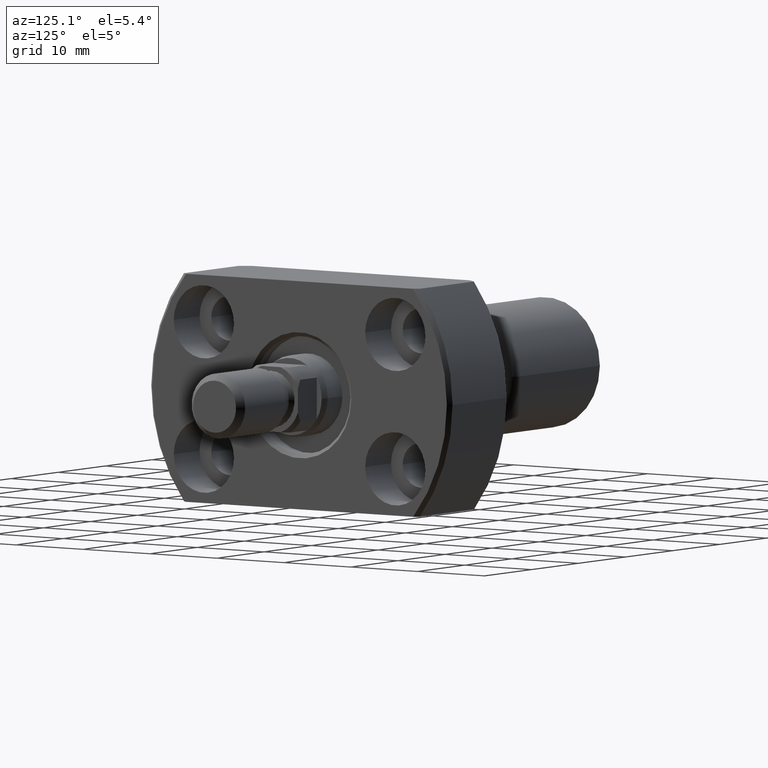
[diagram: clean part render]
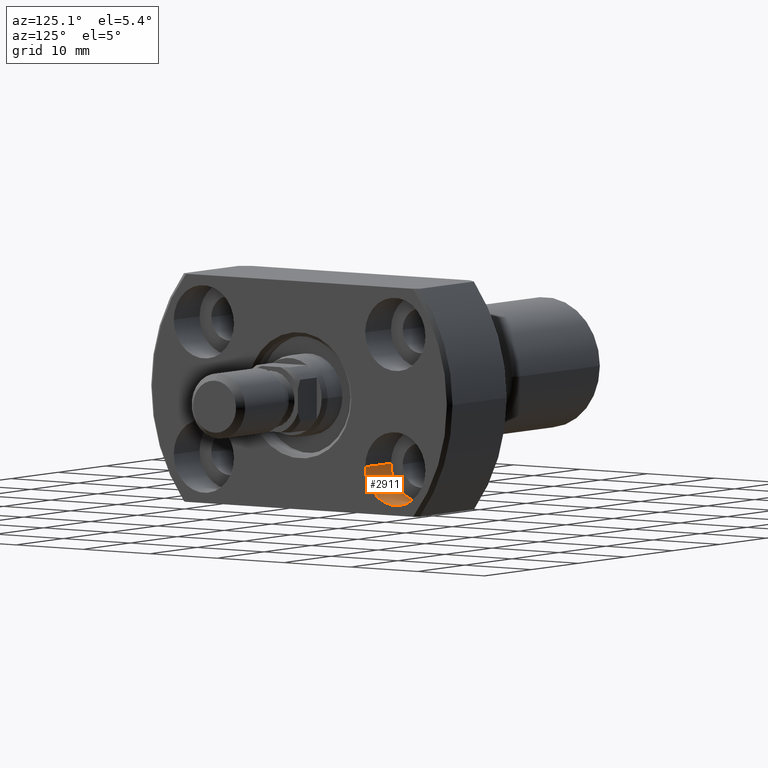
[diagram: same view with one face highlighted and labeled with its STEP entity id]
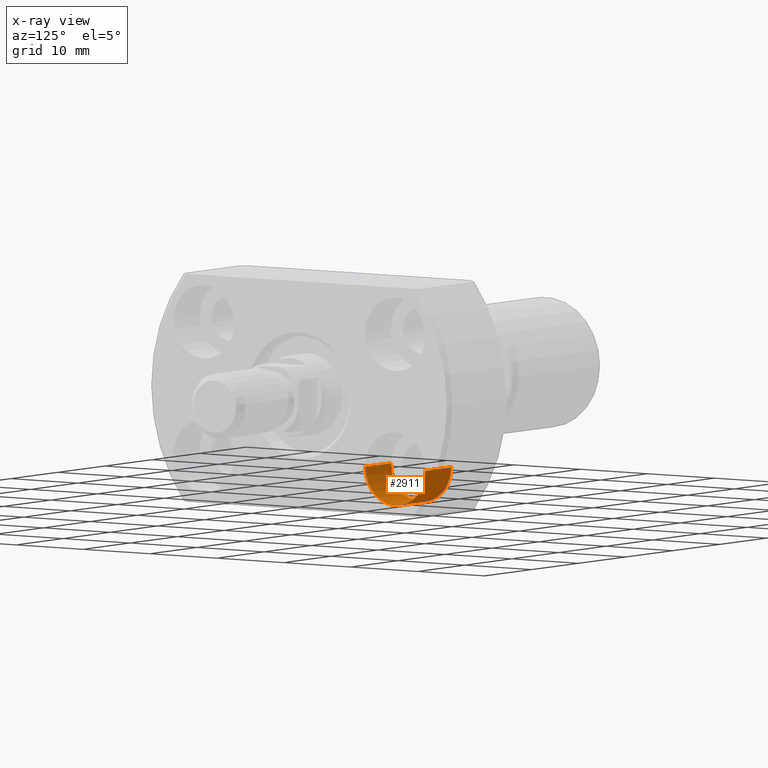
[diagram: x-ray of the same camera — body ghosted, the highlighted face saturated]
A machine part, auxiliary view. The second image highlights one B-rep face of the part: STEP entity #2911.
The next image is the same camera in x-ray: the body ghosted, the highlighted face saturated — about 0% of this face is hidden behind the body in this view.
In plain terms, the highlighted cylindrical surface (partial cylindrical patch) has radius 4.5 mm, axis along (1, -0, 0).
Its self-contained STEP definition (entity closure, byte-faithful):
#19 = VERTEX_POINT ( 'NONE', #2838 ) ;
#207 = VERTEX_POINT ( 'NONE', #3416 ) ;
#221 = ORIENTED_EDGE ( 'NONE', *, *, #1900, .F. ) ;
#360 = CARTESIAN_POINT ( 'NONE',  ( 24.50000000000028422, 9.799999999999087663, -8.250000000000000000 ) ) ;
#385 = CARTESIAN_POINT ( 'NONE',  ( 19.00000000000054001, 18.79999999999965610, -8.250000000000000000 ) ) ;
#439 = DIRECTION ( 'NONE',  ( 2.852656382717286247E-14, 1.000000000000000000, 0.000000000000000000 ) ) ;
#500 = LINE ( 'NONE', #2744, #2232 ) ;
#588 = DIRECTION ( 'NONE',  ( 2.852656382717286247E-14, 1.000000000000000000, 0.000000000000000000 ) ) ;
#764 = CYLINDRICAL_SURFACE ( 'NONE', #2052, 4.500000000000205169 ) ;
#859 = EDGE_CURVE ( 'NONE', #3597, #19, #3311, .T. ) ;
#1053 = ORIENTED_EDGE ( 'NONE', *, *, #2949, .T. ) ;
#1122 = CARTESIAN_POINT ( 'NONE',  ( 19.00000000000041211, 14.29999999999945182, -8.250000000000000000 ) ) ;
#1240 = VECTOR ( 'NONE', #2925, 1000.000000000000000 ) ;
#1273 = DIRECTION ( 'NONE',  ( 1.000000000000000000, -2.889258529047467066E-14, 0.000000000000000000 ) ) ;
#1320 = FACE_OUTER_BOUND ( 'NONE', #2702, .T. ) ;
#1458 = CIRCLE ( 'NONE', #2418, 4.500000000000205169 ) ;
#1562 = DIRECTION ( 'NONE',  ( 1.000000000000000000, -2.886466111666351885E-14, -0.000000000000000000 ) ) ;
#1675 = ORIENTED_EDGE ( 'NONE', *, *, #859, .T. ) ;
#1900 = EDGE_CURVE ( 'NONE', #207, #2280, #1458, .T. ) ;
#2052 = AXIS2_PLACEMENT_3D ( 'NONE', #2124, #1562, #439 ) ;
#2112 = CARTESIAN_POINT ( 'NONE',  ( 24.50000000000041211, 14.29999999999929194, -8.250000000000000000 ) ) ;
#2124 = CARTESIAN_POINT ( 'NONE',  ( 19.00000000000041211, 14.29999999999945182, -8.250000000000000000 ) ) ;
#2185 = EDGE_CURVE ( 'NONE', #2280, #19, #500, .T. ) ;
#2232 = VECTOR ( 'NONE', #2449, 1000.000000000000000 ) ;
#2280 = VERTEX_POINT ( 'NONE', #385 ) ;
#2418 = AXIS2_PLACEMENT_3D ( 'NONE', #1122, #3123, #588 ) ;
#2449 = DIRECTION ( 'NONE',  ( 1.000000000000000000, -2.886466111666351885E-14, -0.000000000000000000 ) ) ;
#2572 = AXIS2_PLACEMENT_3D ( 'NONE', #2112, #1273, #3263 ) ;
#2671 = CARTESIAN_POINT ( 'NONE',  ( 19.00000000000028422, 9.799999999999247535, -8.250000000000000000 ) ) ;
#2702 = EDGE_LOOP ( 'NONE', ( #221, #1053, #1675, #3525 ) ) ;
#2744 = CARTESIAN_POINT ( 'NONE',  ( 19.00000000000054001, 18.79999999999965610, -8.250000000000000000 ) ) ;
#2838 = CARTESIAN_POINT ( 'NONE',  ( 24.50000000000054357, 18.79999999999949623, -8.250000000000000000 ) ) ;
#2911 = ADVANCED_FACE ( 'NONE', ( #1320 ), #764, .F. ) ;
#2925 = DIRECTION ( 'NONE',  ( 1.000000000000000000, -2.886466111666351885E-14, -0.000000000000000000 ) ) ;
#2949 = EDGE_CURVE ( 'NONE', #207, #3597, #3305, .T. ) ;
#3123 = DIRECTION ( 'NONE',  ( 1.000000000000000000, -2.889258529047467066E-14, 0.000000000000000000 ) ) ;
#3263 = DIRECTION ( 'NONE',  ( 2.852656382717286247E-14, 1.000000000000000000, 0.000000000000000000 ) ) ;
#3305 = LINE ( 'NONE', #2671, #1240 ) ;
#3311 = CIRCLE ( 'NONE', #2572, 4.500000000000205169 ) ;
#3416 = CARTESIAN_POINT ( 'NONE',  ( 19.00000000000028422, 9.799999999999247535, -8.250000000000000000 ) ) ;
#3525 = ORIENTED_EDGE ( 'NONE', *, *, #2185, .F. ) ;
#3597 = VERTEX_POINT ( 'NONE', #360 ) ;